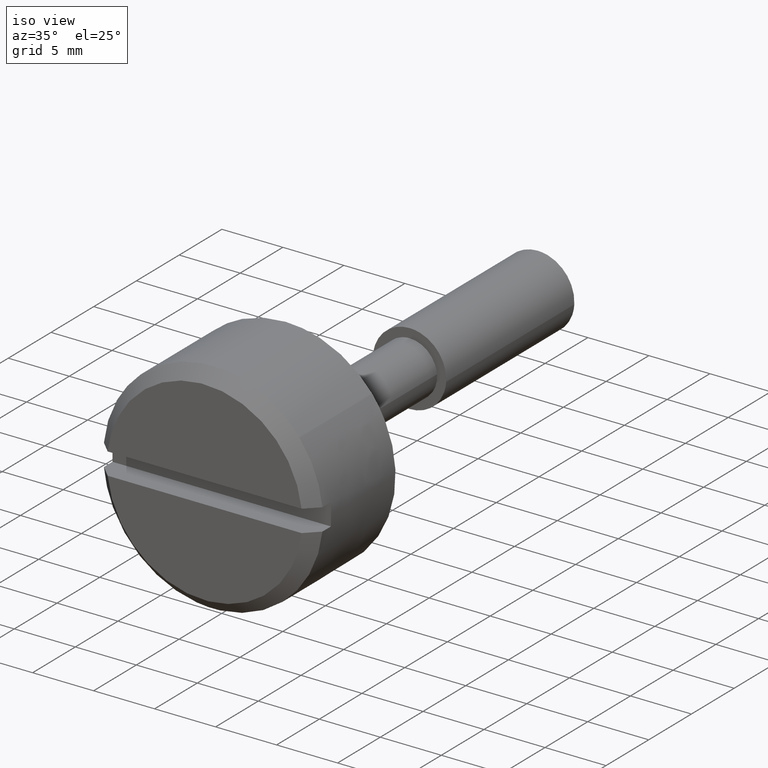
[diagram: clean part render]
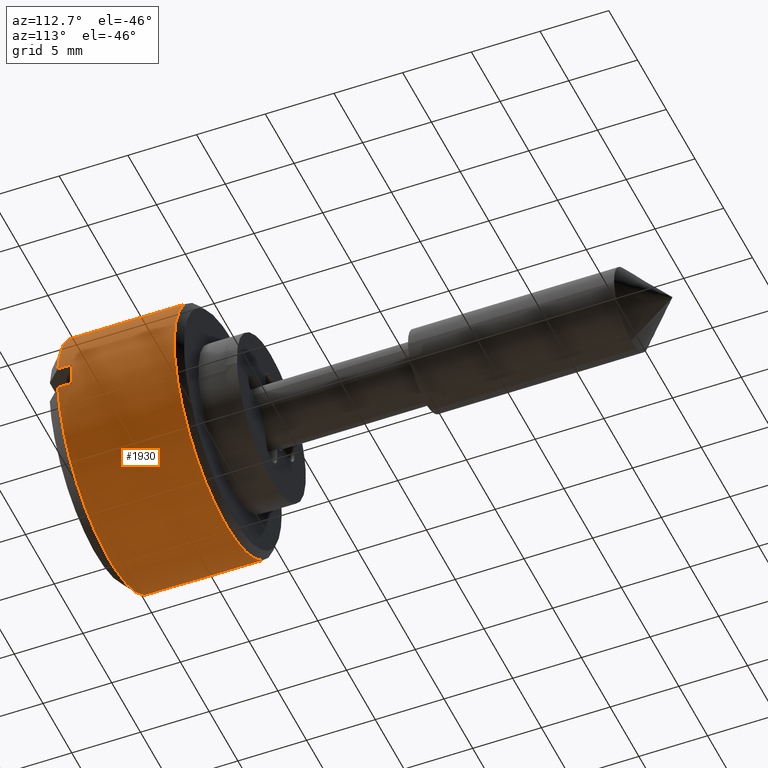
[diagram: tour spotlight — one face highlighted and labeled with its STEP entity id]
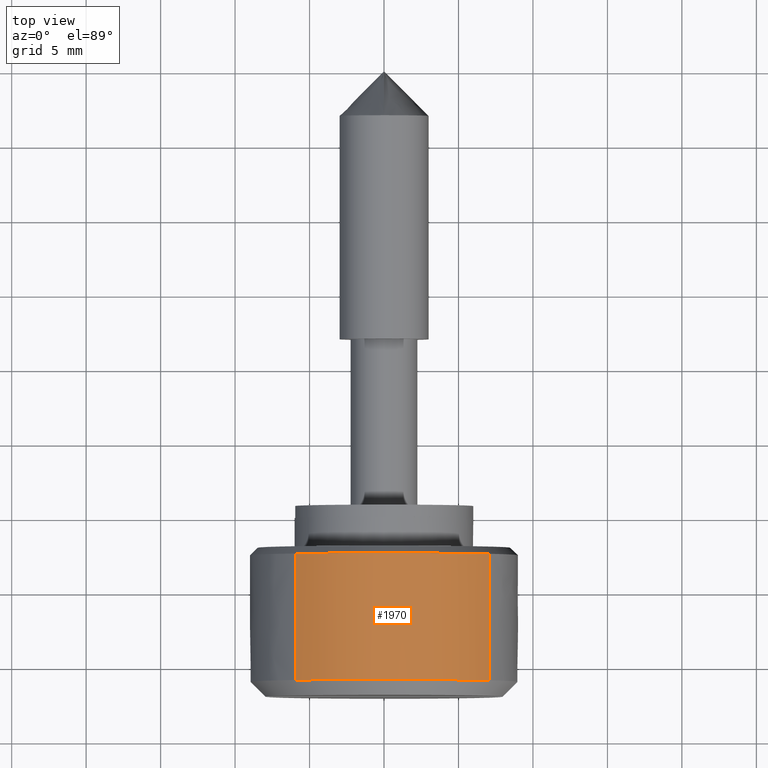
[diagram: tour spotlight — one face highlighted and labeled with its STEP entity id]
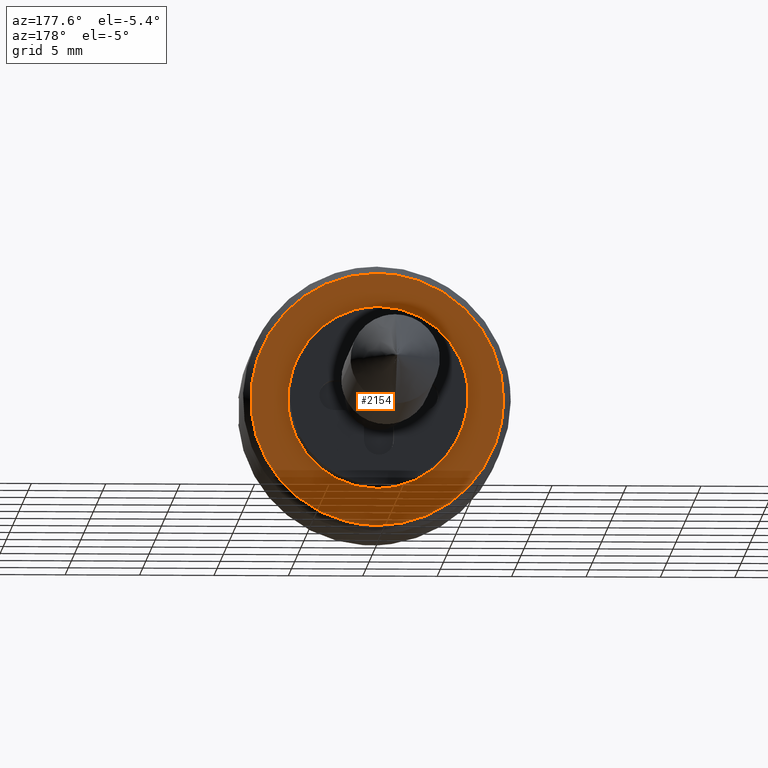
[diagram: tour spotlight — one face highlighted and labeled with its STEP entity id]
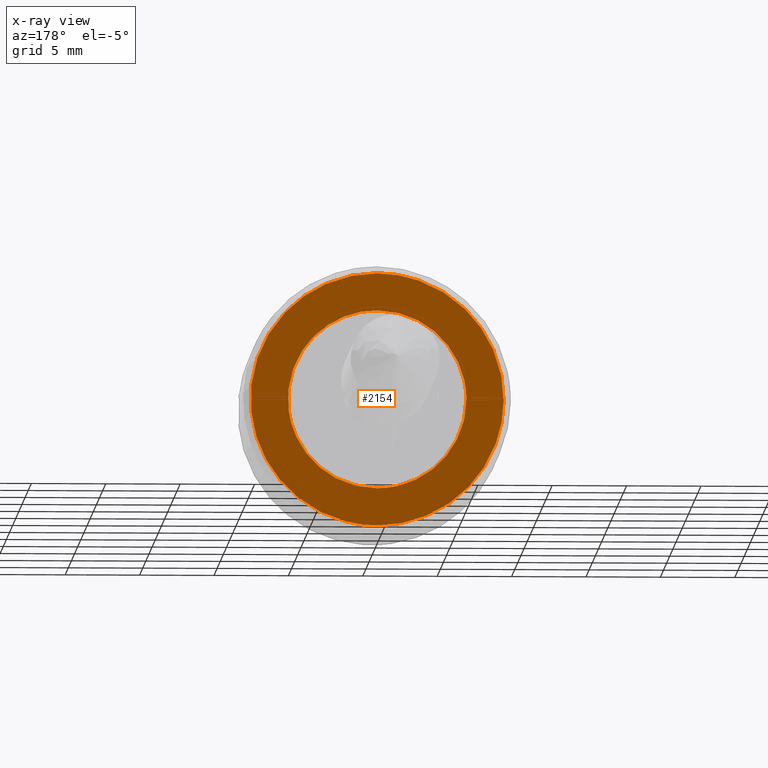
[diagram: x-ray of the same camera — body ghosted, this tour face saturated]
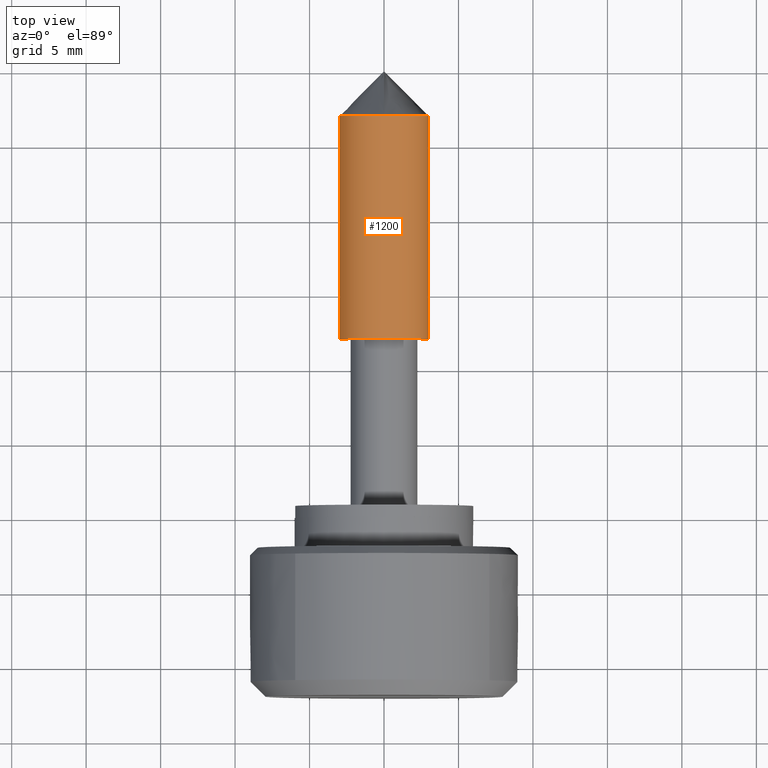
[diagram: tour spotlight — one face highlighted and labeled with its STEP entity id]
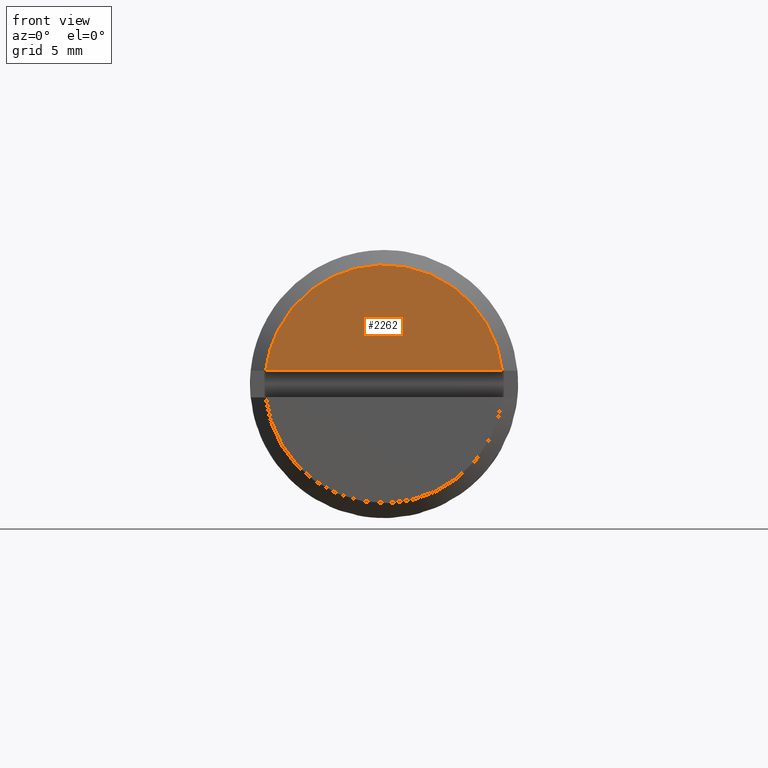
[diagram: tour spotlight — one face highlighted and labeled with its STEP entity id]
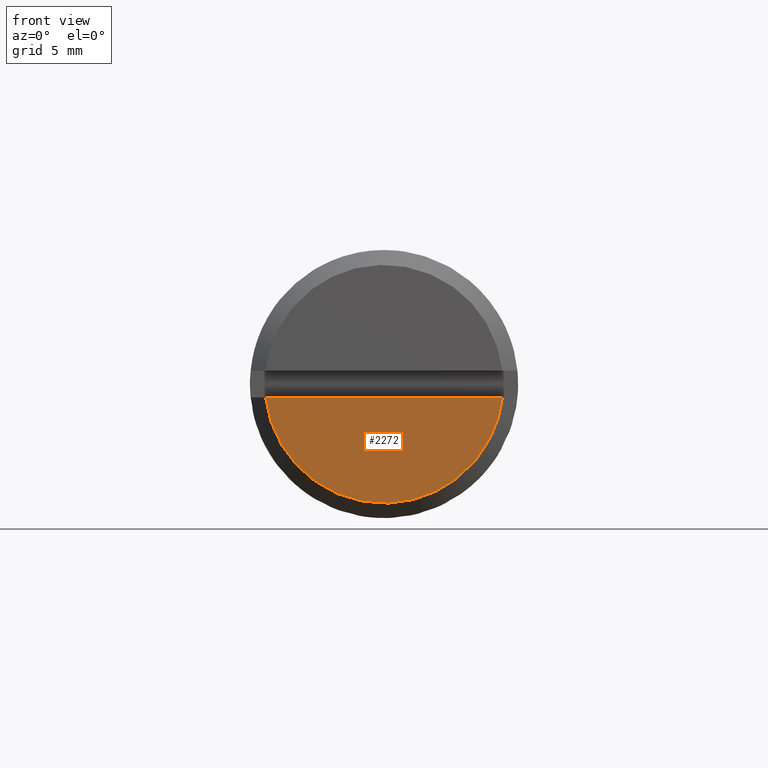
[diagram: tour spotlight — one face highlighted and labeled with its STEP entity id]
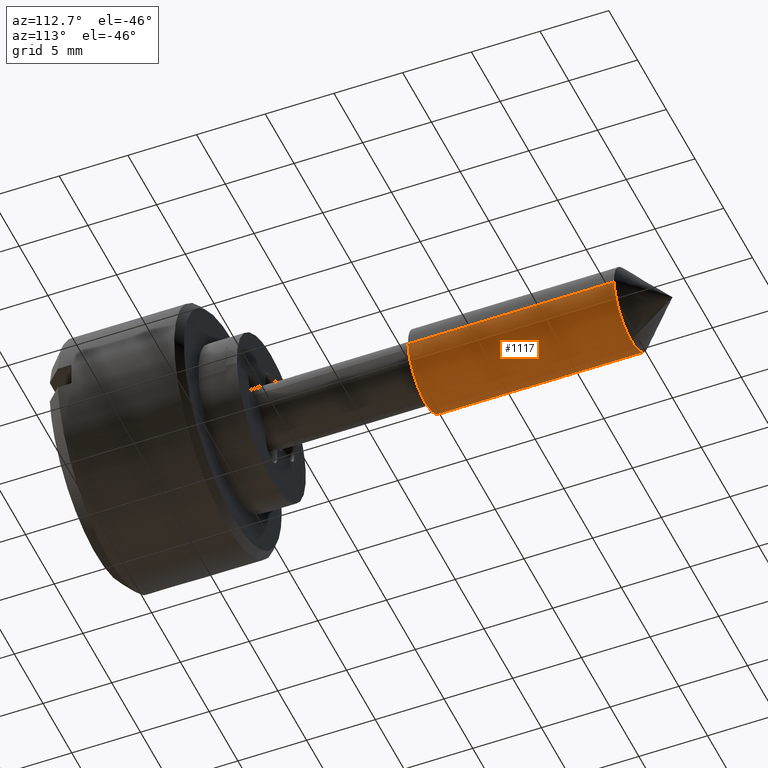
[diagram: tour spotlight — one face highlighted and labeled with its STEP entity id]
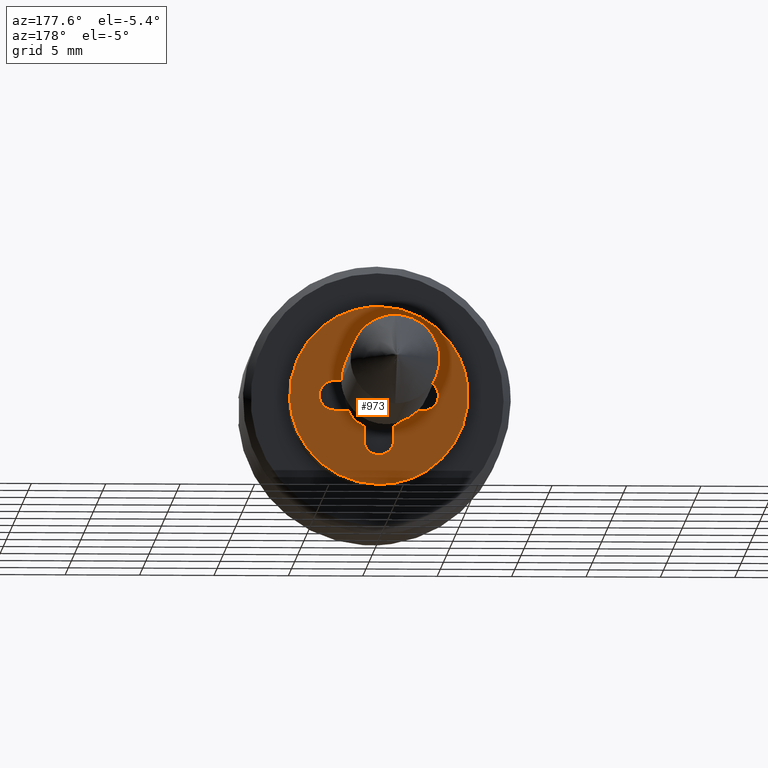
[diagram: tour spotlight — one face highlighted and labeled with its STEP entity id]
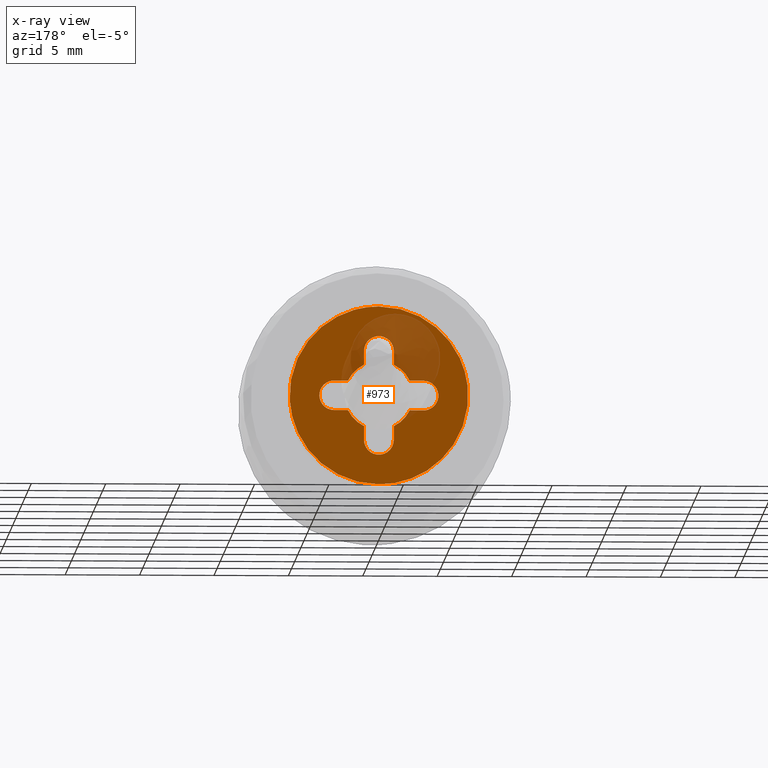
[diagram: x-ray of the same camera — body ghosted, this tour face saturated]
A machine part: a face-by-face anatomy tour. The part has 42 B-rep faces; the first image is the clean iso view, then the 8 largest visible faces are spotlighted one at a time (largest first), each with its STEP entity span.

Face 1 — auxiliary view, entity #1930. In plain terms, the highlighted face is a freeform B-spline surface patch.
Definition (entity closure, byte-faithful):
#1409=CARTESIAN_POINT('',(-2.500000000000823,5.165861152403982,-7.369795014387924));
#1410=VERTEX_POINT('',#1409);
#1411=CARTESIAN_POINT('',(-2.500000000000060,0.0,-9.0));
#1412=VERTEX_POINT('',#1411);
#1413=CARTESIAN_POINT('',(-2.500000000000823,5.165861152403982,-7.369795014387925));
#1414=CARTESIAN_POINT('',(-2.500000000000060,2.840154707553133,-9.000000000000002));
#1415=CARTESIAN_POINT('',(-2.500000000000060,0.0,-9.0));
#1423=(BOUNDED_CURVE()B_SPLINE_CURVE(2,(#1413,#1414,#1415),.UNSPECIFIED.,.F.,.U.)B_SPLINE_CURVE_WITH_KNOTS((3,3),(0.901326273796527,1.0),.UNSPECIFIED.)CURVE()GEOMETRIC_REPRESENTATION_ITEM()RATIONAL_B_SPLINE_CURVE((0.860049271925575,0.884396538879790,1.0))REPRESENTATION_ITEM(''));
#1424=EDGE_CURVE('',#1410,#1412,#1423,.T.);
#1482=CARTESIAN_POINT('',(-2.500000000000179,8.999657307577653,-0.078538819486243));
#1483=VERTEX_POINT('',#1482);
#1489=CARTESIAN_POINT('',(-2.500000000000061,5.963580170915624,6.740601719806758));
#1490=VERTEX_POINT('',#1489);
#1491=CARTESIAN_POINT('',(-2.500000000000061,5.963580170915624,6.740601719806758));
#1492=CARTESIAN_POINT('',(-2.500000000000060,9.0,4.054204805671292));
#1493=CARTESIAN_POINT('',(-2.500000000000060,9.0,0.0));
#1494=CARTESIAN_POINT('',(-2.500000000000060,8.999999999999998,-0.039270157387174));
#1495=CARTESIAN_POINT('',(-2.500000000000179,8.999657307577653,-0.078538819486243));
#1503=(BOUNDED_CURVE()B_SPLINE_CURVE(2,(#1491,#1492,#1493,#1494,#1495),.UNSPECIFIED.,.F.,.U.)B_SPLINE_CURVE_WITH_KNOTS((3,2,3),(0.615779876272906,0.750000000000000,0.751539894335021),.UNSPECIFIED.)CURVE()GEOMETRIC_REPRESENTATION_ITEM()RATIONAL_B_SPLINE_CURVE((0.854350160262094,0.842751343728127,1.0,0.998195901566333,0.996414028100328))REPRESENTATION_ITEM(''));
#1504=EDGE_CURVE('',#1490,#1483,#1503,.T.);
#1521=CARTESIAN_POINT('',(-2.500000000000060,-7.070640577825230,5.568306907777828));
#1522=VERTEX_POINT('',#1521);
#1536=CARTESIAN_POINT('',(-2.500000000000060,0.0,-9.0));
#1537=CARTESIAN_POINT('',(-2.500000000000060,-9.0,-9.0));
#1538=CARTESIAN_POINT('',(-2.500000000000060,-9.0,0.0));
#1539=CARTESIAN_POINT('',(-2.500000000000060,-9.000000000000002,3.118404765965039));
#1540=CARTESIAN_POINT('',(-2.500000000000061,-7.070640577825230,5.568306907777828));
#1548=(BOUNDED_CURVE()B_SPLINE_CURVE(2,(#1536,#1537,#1538,#1539,#1540),.UNSPECIFIED.,.F.,.U.)B_SPLINE_CURVE_WITH_KNOTS((3,2,3),(0.0,0.250000000000000,0.357127503382297),.UNSPECIFIED.)CURVE()GEOMETRIC_REPRESENTATION_ITEM()RATIONAL_B_SPLINE_CURVE((1.0,0.707106781186547,1.0,0.874492322843640,0.856547238559858))REPRESENTATION_ITEM(''));
#1549=EDGE_CURVE('',#1412,#1522,#1548,.T.);
#1568=CARTESIAN_POINT('',(-2.500000000000179,8.999657307577653,-0.078538819486243));
#1569=CARTESIAN_POINT('',(-2.500000000000060,8.959231914342398,-4.710830061143616));
#1570=CARTESIAN_POINT('',(-2.500000000000823,5.165861152403982,-7.369795014387924));
#1578=(BOUNDED_CURVE()B_SPLINE_CURVE(2,(#1568,#1569,#1570),.UNSPECIFIED.,.F.,.U.)B_SPLINE_CURVE_WITH_KNOTS((3,3),(0.751539894335021,0.901326273796527),.UNSPECIFIED.)CURVE()GEOMETRIC_REPRESENTATION_ITEM()RATIONAL_B_SPLINE_CURVE((0.996414028100327,0.823090203821323,0.860049271925575))REPRESENTATION_ITEM(''));
#1579=EDGE_CURVE('',#1483,#1410,#1578,.T.);
#1785=CARTESIAN_POINT('',(-11.212397500000002,-7.070639198512934,5.568308659229686));
#1786=CARTESIAN_POINT('',(-11.212397500000002,-12.329090635285770,-1.108873790183274));
#1787=CARTESIAN_POINT('',(-11.212397500000000,-5.963580433941632,-6.740601487101019));
#1788=CARTESIAN_POINT('',(-11.212397500000002,0.777021053159387,-12.704181921042650));
#1789=CARTESIAN_POINT('',(-11.212397500000000,6.740601487101019,-5.963580433941632));
#1790=CARTESIAN_POINT('',(-11.212397500000002,12.704181921042650,0.777021053159387));
#1791=CARTESIAN_POINT('',(-11.212397500000000,5.963580433941632,6.740601487101019));
#1792=CARTESIAN_POINT('',(-2.282190062500059,-7.070639198512934,5.568308659229686));
#1793=CARTESIAN_POINT('',(-2.282190062500060,-12.329090635285770,-1.108873790183274));
#1794=CARTESIAN_POINT('',(-2.282190062500060,-5.963580433941632,-6.740601487101019));
#1795=CARTESIAN_POINT('',(-2.282190062500060,0.777021053159387,-12.704181921042650));
#1796=CARTESIAN_POINT('',(-2.282190062500060,6.740601487101019,-5.963580433941632));
#1797=CARTESIAN_POINT('',(-2.282190062500061,12.704181921042650,0.777021053159387));
#1798=CARTESIAN_POINT('',(-2.282190062500061,5.963580433941632,6.740601487101019));
#1806=(BOUNDED_SURFACE()B_SPLINE_SURFACE(2,1,((#1785,#1792),(#1786,#1793),(#1787,#1794),(#1788,#1795),(#1789,#1796),(#1790,#1797),(#1791,#1798)),.UNSPECIFIED.,.F.,.F.,.U.)B_SPLINE_SURFACE_WITH_KNOTS((3,2,2,3),(2,2),(0.0,14.315220715614160,29.226908961045570,44.138597206476987),(0.0,8.930207437499943),.UNSPECIFIED.)GEOMETRIC_REPRESENTATION_ITEM()RATIONAL_B_SPLINE_SURFACE(((0.977505800795127,0.977505800795127),(0.718822509939086,0.718822509939086),(1.0,1.0),(0.707106781186548,0.707106781186548),(1.0,1.0),(0.707106781186548,0.707106781186548),(1.0,1.0)))REPRESENTATION_ITEM('')SURFACE());
#1807=CARTESIAN_POINT('',(-10.999900000000009,-7.070639707893692,5.568308012417802));
#1808=VERTEX_POINT('',#1807);
#1809=CARTESIAN_POINT('',(-10.999900000000000,-8.954886933959578,0.900000000000000));
#1810=VERTEX_POINT('',#1809);
#1811=CARTESIAN_POINT('',(-10.999900000000009,-7.070639707893692,5.568308012417803));
#1812=CARTESIAN_POINT('',(-10.999900000000000,-8.692712929360809,3.508598409117082));
#1813=CARTESIAN_POINT('',(-10.999900000000000,-8.954886933959578,0.900000000000001));
#1821=(BOUNDED_CURVE()B_SPLINE_CURVE(2,(#1811,#1812,#1813),.UNSPECIFIED.,.F.,.U.)B_SPLINE_CURVE_WITH_KNOTS((3,3),(0.804778676170615,1.0),.UNSPECIFIED.)CURVE()GEOMETRIC_REPRESENTATION_ITEM()RATIONAL_B_SPLINE_CURVE((0.877012501866071,0.899117369627689,1.0))REPRESENTATION_ITEM(''));
#1822=EDGE_CURVE('',#1808,#1810,#1821,.T.);
#1823=ORIENTED_EDGE('',*,*,#1822,.T.);
#1824=CARTESIAN_POINT('',(-10.0,-8.954886933959628,0.900000000000000));
#1825=VERTEX_POINT('',#1824);
#1826=CARTESIAN_POINT('',(-10.999900000000000,-8.954886933959578,0.900000000000000));
#1827=CARTESIAN_POINT('',(-10.0,-8.954886933959628,0.900000000000000));
#1828=QUASI_UNIFORM_CURVE('',1,(#1826,#1827),.UNSPECIFIED.,.F.,.U.);
#1829=EDGE_CURVE('',#1810,#1825,#1828,.T.);
#1830=ORIENTED_EDGE('',*,*,#1829,.T.);
#1831=CARTESIAN_POINT('',(-10.0,-8.954886933959628,-0.900000000000000));
#1832=VERTEX_POINT('',#1831);
#1833=CARTESIAN_POINT('',(-10.0,-8.954886933959628,0.900000000000000));
#1834=CARTESIAN_POINT('',(-10.0,-9.045340337332908,1.626303E-015));
#1835=CARTESIAN_POINT('',(-10.0,-8.954886933959628,-0.900000000000000));
#1843=(BOUNDED_CURVE()B_SPLINE_CURVE(2,(#1833,#1834,#1835),.UNSPECIFIED.,.F.,.U.)CURVE()GEOMETRIC_REPRESENTATION_ITEM()QUASI_UNIFORM_CURVE()RATIONAL_B_SPLINE_CURVE((1.0,0.994987437106620,1.0))REPRESENTATION_ITEM(''));
#1844=EDGE_CURVE('',#1825,#1832,#1843,.T.);
#1845=ORIENTED_EDGE('',*,*,#1844,.T.);
#1846=CARTESIAN_POINT('',(-10.999900000000000,-8.954886933959578,-0.900000000000000));
#1847=VERTEX_POINT('',#1846);
#1848=CARTESIAN_POINT('',(-10.0,-8.954886933959628,-0.900000000000000));
#1849=CARTESIAN_POINT('',(-10.999900000000000,-8.954886933959578,-0.900000000000000));
#1850=QUASI_UNIFORM_CURVE('',1,(#1848,#1849),.UNSPECIFIED.,.F.,.U.);
#1851=EDGE_CURVE('',#1832,#1847,#1850,.T.);
#1852=ORIENTED_EDGE('',*,*,#1851,.T.);
#1853=CARTESIAN_POINT('',(-10.999900000000000,8.954886933959578,-0.900000000000000));
#1854=VERTEX_POINT('',#1853);
#1855=CARTESIAN_POINT('',(-10.999900000000000,-8.954886933959578,-0.899999999999998));
#1856=CARTESIAN_POINT('',(-10.999900000000000,-8.140806303599618,-9.0));
#1857=CARTESIAN_POINT('',(-10.999900000000000,0.0,-9.0));
#1858=CARTESIAN_POINT('',(-10.999900000000000,8.140806303599614,-9.0));
#1859=CARTESIAN_POINT('',(-10.999900000000000,8.954886933959578,-0.900000000000002));
#1867=(BOUNDED_CURVE()B_SPLINE_CURVE(2,(#1855,#1856,#1857,#1858,#1859),.UNSPECIFIED.,.F.,.U.)B_SPLINE_CURVE_WITH_KNOTS((3,2,3),(0.0,0.500000000000000,1.0),.UNSPECIFIED.)CURVE()GEOMETRIC_REPRESENTATION_ITEM()RATIONAL_B_SPLINE_CURVE((1.0,0.741619848709566,1.0,0.741619848709566,1.0))REPRESENTATION_ITEM(''));
#1868=EDGE_CURVE('',#1847,#1854,#1867,.T.);
#1869=ORIENTED_EDGE('',*,*,#1868,.T.);
#1870=CARTESIAN_POINT('',(-10.0,8.954886933959628,-0.900000000000000));
#1871=VERTEX_POINT('',#1870);
#1872=CARTESIAN_POINT('',(-10.999900000000000,8.954886933959578,-0.900000000000000));
#1873=CARTESIAN_POINT('',(-10.0,8.954886933959628,-0.900000000000000));
#1874=QUASI_UNIFORM_CURVE('',1,(#1872,#1873),.UNSPECIFIED.,.F.,.U.);
#1875=EDGE_CURVE('',#1854,#1871,#1874,.T.);
#1876=ORIENTED_EDGE('',*,*,#1875,.T.);
#1877=CARTESIAN_POINT('',(-10.0,8.954886933959628,0.900000000000000));
#1878=VERTEX_POINT('',#1877);
#1879=CARTESIAN_POINT('',(-10.0,8.954886933959628,-0.900000000000000));
#1880=CARTESIAN_POINT('',(-10.0,9.045340337332908,-2.602085E-015));
#1881=CARTESIAN_POINT('',(-10.0,8.954886933959628,0.900000000000000));
#1889=(BOUNDED_CURVE()B_SPLINE_CURVE(2,(#1879,#1880,#1881),.UNSPECIFIED.,.F.,.U.)CURVE()GEOMETRIC_REPRESENTATION_ITEM()QUASI_UNIFORM_CURVE()RATIONAL_B_SPLINE_CURVE((1.0,0.994987437106620,1.0))REPRESENTATION_ITEM(''));
#1890=EDGE_CURVE('',#1871,#1878,#1889,.T.);
#1891=ORIENTED_EDGE('',*,*,#1890,.T.);
#1892=CARTESIAN_POINT('',(-10.999900000000000,8.954886933959578,0.900000000000000));
#1893=VERTEX_POINT('',#1892);
#1894=CARTESIAN_POINT('',(-10.0,8.954886933959628,0.900000000000000));
#1895=CARTESIAN_POINT('',(-10.999900000000000,8.954886933959578,0.900000000000000));
#1896=QUASI_UNIFORM_CURVE('',1,(#1894,#1895),.UNSPECIFIED.,.F.,.U.);
#1897=EDGE_CURVE('',#1878,#1893,#1896,.T.);
#1898=ORIENTED_EDGE('',*,*,#1897,.T.);
#1899=CARTESIAN_POINT('',(-10.999900000000000,5.963580299776952,6.740601605799899));
#1900=VERTEX_POINT('',#1899);
#1901=CARTESIAN_POINT('',(-10.999900000000000,8.954886933959578,0.900000000000001));
#1902=CARTESIAN_POINT('',(-10.999900000000000,8.602535615492027,4.405851353231656));
#1903=CARTESIAN_POINT('',(-10.999900000000004,5.963580299776952,6.740601605799899));
#1911=(BOUNDED_CURVE()B_SPLINE_CURVE(2,(#1901,#1902,#1903),.UNSPECIFIED.,.F.,.U.)B_SPLINE_CURVE_WITH_KNOTS((3,3),(0.0,0.253570810603550),.UNSPECIFIED.)CURVE()GEOMETRIC_REPRESENTATION_ITEM()RATIONAL_B_SPLINE_CURVE((1.0,0.868964671186834,0.870836280553096))REPRESENTATION_ITEM(''));
#1912=EDGE_CURVE('',#1893,#1900,#1911,.T.);
#1913=ORIENTED_EDGE('',*,*,#1912,.T.);
#1914=CARTESIAN_POINT('',(-10.999900000000000,5.963580299776952,6.740601605799899));
#1915=CARTESIAN_POINT('',(-2.500000000000061,5.963580170915624,6.740601719806758));
#1916=QUASI_UNIFORM_CURVE('',1,(#1914,#1915),.UNSPECIFIED.,.F.,.U.);
#1917=EDGE_CURVE('',#1900,#1490,#1916,.T.);
#1918=ORIENTED_EDGE('',*,*,#1917,.T.);
#1919=ORIENTED_EDGE('',*,*,#1504,.T.);
#1920=ORIENTED_EDGE('',*,*,#1579,.T.);
#1921=ORIENTED_EDGE('',*,*,#1424,.T.);
#1922=ORIENTED_EDGE('',*,*,#1549,.T.);
#1923=CARTESIAN_POINT('',(-10.999900000000009,-7.070639707893692,5.568308012417802));
#1924=CARTESIAN_POINT('',(-2.500000000000060,-7.070640577825230,5.568306907777828));
#1925=QUASI_UNIFORM_CURVE('',1,(#1923,#1924),.UNSPECIFIED.,.F.,.U.);
#1926=EDGE_CURVE('',#1808,#1522,#1925,.T.);
#1927=ORIENTED_EDGE('',*,*,#1926,.F.);
#1928=EDGE_LOOP('',(#1823,#1830,#1845,#1852,#1869,#1876,#1891,#1898,#1913,#1918,#1919,#1920,#1921,#1922,#1927));
#1929=FACE_OUTER_BOUND('',#1928,.T.);
#1930=ADVANCED_FACE('',(#1929),#1806,.T.);

Face 2 — top view, entity #1970. In plain terms, the highlighted face is a freeform B-spline surface patch.
Definition (entity closure, byte-faithful):
#1489=CARTESIAN_POINT('',(-2.500000000000061,5.963580170915624,6.740601719806758));
#1490=VERTEX_POINT('',#1489);
#1506=CARTESIAN_POINT('',(-2.500000000000060,0.0,9.0));
#1507=VERTEX_POINT('',#1506);
#1508=CARTESIAN_POINT('',(-2.500000000000060,0.0,9.0));
#1509=CARTESIAN_POINT('',(-2.500000000000060,3.409794576657790,9.0));
#1510=CARTESIAN_POINT('',(-2.500000000000061,5.963580170915624,6.740601719806758));
#1518=(BOUNDED_CURVE()B_SPLINE_CURVE(2,(#1508,#1509,#1510),.UNSPECIFIED.,.F.,.U.)B_SPLINE_CURVE_WITH_KNOTS((3,3),(0.500000000000000,0.615779876272906),.UNSPECIFIED.)CURVE()GEOMETRIC_REPRESENTATION_ITEM()RATIONAL_B_SPLINE_CURVE((1.0,0.864355437458421,0.854350160262094))REPRESENTATION_ITEM(''));
#1519=EDGE_CURVE('',#1507,#1490,#1518,.T.);
#1521=CARTESIAN_POINT('',(-2.500000000000060,-7.070640577825230,5.568306907777828));
#1522=VERTEX_POINT('',#1521);
#1523=CARTESIAN_POINT('',(-2.500000000000061,-7.070640577825230,5.568306907777828));
#1524=CARTESIAN_POINT('',(-2.500000000000060,-4.368096142074956,8.999999999999998));
#1525=CARTESIAN_POINT('',(-2.500000000000060,0.0,9.0));
#1533=(BOUNDED_CURVE()B_SPLINE_CURVE(2,(#1523,#1524,#1525),.UNSPECIFIED.,.F.,.U.)B_SPLINE_CURVE_WITH_KNOTS((3,3),(0.357127503382297,0.500000000000000),.UNSPECIFIED.)CURVE()GEOMETRIC_REPRESENTATION_ITEM()RATIONAL_B_SPLINE_CURVE((0.856547238559858,0.832614458342907,1.0))REPRESENTATION_ITEM(''));
#1534=EDGE_CURVE('',#1522,#1507,#1533,.T.);
#1807=CARTESIAN_POINT('',(-10.999900000000009,-7.070639707893692,5.568308012417802));
#1808=VERTEX_POINT('',#1807);
#1899=CARTESIAN_POINT('',(-10.999900000000000,5.963580299776952,6.740601605799899));
#1900=VERTEX_POINT('',#1899);
#1914=CARTESIAN_POINT('',(-10.999900000000000,5.963580299776952,6.740601605799899));
#1915=CARTESIAN_POINT('',(-2.500000000000061,5.963580170915624,6.740601719806758));
#1916=QUASI_UNIFORM_CURVE('',1,(#1914,#1915),.UNSPECIFIED.,.F.,.U.);
#1917=EDGE_CURVE('',#1900,#1490,#1916,.T.);
#1923=CARTESIAN_POINT('',(-10.999900000000009,-7.070639707893692,5.568308012417802));
#1924=CARTESIAN_POINT('',(-2.500000000000060,-7.070640577825230,5.568306907777828));
#1925=QUASI_UNIFORM_CURVE('',1,(#1923,#1924),.UNSPECIFIED.,.F.,.U.);
#1926=EDGE_CURVE('',#1808,#1522,#1925,.T.);
#1931=CARTESIAN_POINT('',(-11.212397500000000,5.963580433941632,6.740601487101019));
#1932=CARTESIAN_POINT('',(-11.212397500000002,-0.777021053159387,12.704181921042650));
#1933=CARTESIAN_POINT('',(-11.212397500000000,-6.740601487101019,5.963580433941632));
#1934=CARTESIAN_POINT('',(-11.212397499999998,-6.911276596992985,5.770667315339068));
#1935=CARTESIAN_POINT('',(-11.212397500000002,-7.070639198512934,5.568308659229686));
#1936=CARTESIAN_POINT('',(-2.282190062500061,5.963580433941632,6.740601487101019));
#1937=CARTESIAN_POINT('',(-2.282190062500061,-0.777021053159387,12.704181921042650));
#1938=CARTESIAN_POINT('',(-2.282190062500060,-6.740601487101019,5.963580433941632));
#1939=CARTESIAN_POINT('',(-2.282190062500060,-6.911276596992985,5.770667315339068));
#1940=CARTESIAN_POINT('',(-2.282190062500059,-7.070639198512934,5.568308659229686));
#1948=(BOUNDED_SURFACE()B_SPLINE_SURFACE(2,1,((#1931,#1936),(#1932,#1937),(#1933,#1938),(#1934,#1939),(#1935,#1940)),.UNSPECIFIED.,.F.,.F.,.U.)B_SPLINE_SURFACE_WITH_KNOTS((3,2,3),(2,2),(0.0,14.911688245431410,15.508155775248669),(0.0,8.930207437499943),.UNSPECIFIED.)GEOMETRIC_REPRESENTATION_ITEM()RATIONAL_B_SPLINE_SURFACE(((1.0,1.0),(0.707106781186548,0.707106781186548),(1.0,1.0),(0.988284271247462,0.988284271247462),(0.977505800795127,0.977505800795127)))REPRESENTATION_ITEM('')SURFACE());
#1949=CARTESIAN_POINT('',(-10.999900000000004,5.963580299776952,6.740601605799899));
#1950=CARTESIAN_POINT('',(-10.999900000000002,3.409794773409116,9.0));
#1951=CARTESIAN_POINT('',(-10.999900000000000,0.0,9.0));
#1952=CARTESIAN_POINT('',(-10.999900000000002,-4.368095782060909,9.0));
#1953=CARTESIAN_POINT('',(-10.999900000000009,-7.070639707893692,5.568308012417803));
#1961=(BOUNDED_CURVE()B_SPLINE_CURVE(2,(#1949,#1950,#1951,#1952,#1953),.UNSPECIFIED.,.F.,.U.)B_SPLINE_CURVE_WITH_KNOTS((3,2,3),(0.253570810603550,0.500000000000000,0.804778676170615),.UNSPECIFIED.)CURVE()GEOMETRIC_REPRESENTATION_ITEM()RATIONAL_B_SPLINE_CURVE((0.870836280553096,0.872655177522732,1.0,0.842502479081877,0.877012501866071))REPRESENTATION_ITEM(''));
#1962=EDGE_CURVE('',#1900,#1808,#1961,.T.);
#1963=ORIENTED_EDGE('',*,*,#1962,.T.);
#1964=ORIENTED_EDGE('',*,*,#1926,.T.);
#1965=ORIENTED_EDGE('',*,*,#1534,.T.);
#1966=ORIENTED_EDGE('',*,*,#1519,.T.);
#1967=ORIENTED_EDGE('',*,*,#1917,.F.);
#1968=EDGE_LOOP('',(#1963,#1964,#1965,#1966,#1967));
#1969=FACE_OUTER_BOUND('',#1968,.T.);
#1970=ADVANCED_FACE('',(#1969),#1948,.T.);

Face 3 — auxiliary view, entity #2154. An x-ray twin of the same camera follows (body ghosted, this face saturated) — the face is partly hidden behind the body. In plain terms, the highlighted face is a freeform B-spline surface patch.
Definition (entity closure, byte-faithful):
#1426=CARTESIAN_POINT('',(-2.000000000000451,4.878868866152107,-6.960361958037634));
#1427=VERTEX_POINT('',#1426);
#1433=CARTESIAN_POINT('',(-2.000000000000100,0.0,-8.500000000000000));
#1434=VERTEX_POINT('',#1433);
#1435=CARTESIAN_POINT('',(-2.000000000000100,0.0,-8.500000000000000));
#1436=CARTESIAN_POINT('',(-2.000000000000101,2.682368334901900,-8.500000000000002));
#1437=CARTESIAN_POINT('',(-2.000000000000450,4.878868866152107,-6.960361958037634));
#1445=(BOUNDED_CURVE()B_SPLINE_CURVE(2,(#1435,#1436,#1437),.UNSPECIFIED.,.F.,.U.)B_SPLINE_CURVE_WITH_KNOTS((3,3),(0.0,0.098673726203167),.UNSPECIFIED.)CURVE()GEOMETRIC_REPRESENTATION_ITEM()RATIONAL_B_SPLINE_CURVE((1.0,0.884396538880148,0.860049271925726))REPRESENTATION_ITEM(''));
#1446=EDGE_CURVE('',#1434,#1427,#1445,.T.);
#1448=CARTESIAN_POINT('',(-2.000000000000100,0.0,8.500000000000000));
#1449=VERTEX_POINT('',#1448);
#1450=CARTESIAN_POINT('',(-2.000000000000100,0.0,8.500000000000000));
#1451=CARTESIAN_POINT('',(-2.000000000000100,-8.500000000000002,8.500000000000002));
#1452=CARTESIAN_POINT('',(-2.000000000000100,-8.500000000000000,0.0));
#1453=CARTESIAN_POINT('',(-2.000000000000100,-8.500000000000002,-8.500000000000002));
#1454=CARTESIAN_POINT('',(-2.000000000000100,0.0,-8.500000000000000));
#1462=(BOUNDED_CURVE()B_SPLINE_CURVE(2,(#1450,#1451,#1452,#1453,#1454),.UNSPECIFIED.,.F.,.U.)B_SPLINE_CURVE_WITH_KNOTS((3,2,3),(0.500000000000000,0.750000000000000,1.0),.UNSPECIFIED.)CURVE()GEOMETRIC_REPRESENTATION_ITEM()RATIONAL_B_SPLINE_CURVE((1.0,0.707106781186548,1.0,0.707106781186548,1.0))REPRESENTATION_ITEM(''));
#1463=EDGE_CURVE('',#1449,#1434,#1462,.T.);
#1465=CARTESIAN_POINT('',(-2.000000000001879,8.499676346047114,-0.074175551749272));
#1466=VERTEX_POINT('',#1465);
#1467=CARTESIAN_POINT('',(-2.000000000001879,8.499676346047114,-0.074175551749272));
#1468=CARTESIAN_POINT('',(-2.000000000000100,8.500000000000000,-0.037088481989042));
#1469=CARTESIAN_POINT('',(-2.000000000000100,8.500000000000000,0.0));
#1470=CARTESIAN_POINT('',(-2.000000000000100,8.500000000000002,8.500000000000002));
#1471=CARTESIAN_POINT('',(-2.000000000000100,0.0,8.500000000000000));
#1479=(BOUNDED_CURVE()B_SPLINE_CURVE(2,(#1467,#1468,#1469,#1470,#1471),.UNSPECIFIED.,.F.,.U.)B_SPLINE_CURVE_WITH_KNOTS((3,2,3),(0.248460105664471,0.250000000000000,0.500000000000000),.UNSPECIFIED.)CURVE()GEOMETRIC_REPRESENTATION_ITEM()RATIONAL_B_SPLINE_CURVE((0.996414028099151,0.998195901565737,1.0,0.707106781186548,1.0))REPRESENTATION_ITEM(''));
#1480=EDGE_CURVE('',#1466,#1449,#1479,.T.);
#1582=CARTESIAN_POINT('',(-2.000000000000450,4.878868866152107,-6.960361958037634));
#1583=CARTESIAN_POINT('',(-2.000000000000101,8.461496807977261,-4.449117279988691));
#1584=CARTESIAN_POINT('',(-2.000000000001879,8.499676346047114,-0.074175551749272));
#1592=(BOUNDED_CURVE()B_SPLINE_CURVE(2,(#1582,#1583,#1584),.UNSPECIFIED.,.F.,.U.)B_SPLINE_CURVE_WITH_KNOTS((3,3),(0.098673726203167,0.248460105664471),.UNSPECIFIED.)CURVE()GEOMETRIC_REPRESENTATION_ITEM()RATIONAL_B_SPLINE_CURVE((0.860049271925726,0.823090203821094,0.996414028099151))REPRESENTATION_ITEM(''));
#1593=EDGE_CURVE('',#1427,#1466,#1592,.T.);
#1617=CARTESIAN_POINT('',(-2.000000000000115,0.0,-6.0));
#1618=VERTEX_POINT('',#1617);
#1619=CARTESIAN_POINT('',(-1.999999999999961,-5.953598067485189,-0.744761740959263));
#1620=VERTEX_POINT('',#1619);
#1621=CARTESIAN_POINT('',(-2.000000000000115,0.0,-6.0));
#1622=CARTESIAN_POINT('',(-2.000000000000115,-5.296197223394925,-6.000000000000001));
#1623=CARTESIAN_POINT('',(-1.999999999999961,-5.953598067485189,-0.744761740959263));
#1631=(BOUNDED_CURVE()B_SPLINE_CURVE(2,(#1621,#1622,#1623),.UNSPECIFIED.,.F.,.U.)B_SPLINE_CURVE_WITH_KNOTS((3,3),(0.0,0.228526248680937),.UNSPECIFIED.)CURVE()GEOMETRIC_REPRESENTATION_ITEM()RATIONAL_B_SPLINE_CURVE((1.0,0.732264845761908,0.954005775028161))REPRESENTATION_ITEM(''));
#1632=EDGE_CURVE('',#1618,#1620,#1631,.T.);
#1634=CARTESIAN_POINT('',(-2.000000000000168,5.999771563433871,0.052356342519694));
#1635=VERTEX_POINT('',#1634);
#1636=CARTESIAN_POINT('',(-2.000000000000168,5.999771563433871,0.052356342519694));
#1637=CARTESIAN_POINT('',(-2.000000000000115,6.0,0.026178669606964));
#1638=CARTESIAN_POINT('',(-2.000000000000115,6.0,0.0));
#1639=CARTESIAN_POINT('',(-2.000000000000114,6.0,-6.0));
#1640=CARTESIAN_POINT('',(-2.000000000000115,0.0,-6.0));
#1648=(BOUNDED_CURVE()B_SPLINE_CURVE(2,(#1636,#1637,#1638,#1639,#1640),.UNSPECIFIED.,.F.,.U.)B_SPLINE_CURVE_WITH_KNOTS((3,2,3),(0.748460189937006,0.750000000000000,1.0),.UNSPECIFIED.)CURVE()GEOMETRIC_REPRESENTATION_ITEM()RATIONAL_B_SPLINE_CURVE((0.996414223129476,0.998196000297154,1.0,0.707106781186548,1.0))REPRESENTATION_ITEM(''));
#1649=EDGE_CURVE('',#1635,#1618,#1648,.T.);
#1720=CARTESIAN_POINT('',(-2.000000000000115,0.0,6.0));
#1721=VERTEX_POINT('',#1720);
#1722=CARTESIAN_POINT('',(-1.999999999999961,-5.953598067485189,-0.744761740959263));
#1723=CARTESIAN_POINT('',(-2.000000000000116,-6.000000000000001,-0.373826392733726));
#1724=CARTESIAN_POINT('',(-2.000000000000115,-6.0,0.0));
#1725=CARTESIAN_POINT('',(-2.000000000000114,-6.0,6.0));
#1726=CARTESIAN_POINT('',(-2.000000000000115,0.0,6.0));
#1734=(BOUNDED_CURVE()B_SPLINE_CURVE(2,(#1722,#1723,#1724,#1725,#1726),.UNSPECIFIED.,.F.,.U.)B_SPLINE_CURVE_WITH_KNOTS((3,2,3),(0.228526248680937,0.250000000000000,0.500000000000000),.UNSPECIFIED.)CURVE()GEOMETRIC_REPRESENTATION_ITEM()RATIONAL_B_SPLINE_CURVE((0.954005775028161,0.974841935424640,1.0,0.707106781186548,1.0))REPRESENTATION_ITEM(''));
#1735=EDGE_CURVE('',#1620,#1721,#1734,.T.);
#1769=CARTESIAN_POINT('',(-2.000000000000115,0.0,6.0));
#1770=CARTESIAN_POINT('',(-2.000000000000114,5.947870109316879,6.0));
#1771=CARTESIAN_POINT('',(-2.000000000000168,5.999771563433871,0.052356342519694));
#1779=(BOUNDED_CURVE()B_SPLINE_CURVE(2,(#1769,#1770,#1771),.UNSPECIFIED.,.F.,.U.)B_SPLINE_CURVE_WITH_KNOTS((3,3),(0.500000000000000,0.748460189937006),.UNSPECIFIED.)CURVE()GEOMETRIC_REPRESENTATION_ITEM()RATIONAL_B_SPLINE_CURVE((1.0,0.708910780889394,0.996414223129476))REPRESENTATION_ITEM(''));
#1780=EDGE_CURVE('',#1721,#1635,#1779,.T.);
#2137=CARTESIAN_POINT('',(-2.000000000000100,-9.349133811290388,-9.349149967050701));
#2138=CARTESIAN_POINT('',(-2.000000000000100,9.348810828621517,-9.349149967050701));
#2139=CARTESIAN_POINT('',(-2.000000000000100,-9.349133811290388,9.349150423026236));
#2140=CARTESIAN_POINT('',(-2.000000000000100,9.348810828621515,9.349150423026236));
#2141=B_SPLINE_SURFACE_WITH_KNOTS('',1,1,((#2137,#2139),(#2138,#2140)),.UNSPECIFIED.,.F.,.F.,.U.,(2,2),(2,2),(0.0,18.697944639911899),(0.0,18.698300390076941),.UNSPECIFIED.);
#2142=ORIENTED_EDGE('',*,*,#1446,.T.);
#2143=ORIENTED_EDGE('',*,*,#1593,.T.);
#2144=ORIENTED_EDGE('',*,*,#1480,.T.);
#2145=ORIENTED_EDGE('',*,*,#1463,.T.);
#2146=EDGE_LOOP('',(#2142,#2143,#2144,#2145));
#2147=FACE_OUTER_BOUND('',#2146,.T.);
#2148=ORIENTED_EDGE('',*,*,#1780,.T.);
#2149=ORIENTED_EDGE('',*,*,#1649,.T.);
#2150=ORIENTED_EDGE('',*,*,#1632,.T.);
#2151=ORIENTED_EDGE('',*,*,#1735,.T.);
#2152=EDGE_LOOP('',(#2148,#2149,#2150,#2151));
#2153=FACE_BOUND('',#2152,.T.);
#2154=ADVANCED_FACE('',(#2147,#2153),#2141,.T.);

Face 4 — top view, entity #1200. In plain terms, the highlighted face is a freeform B-spline surface patch.
Definition (entity closure, byte-faithful):
#1037=CARTESIAN_POINT('',(27.0,2.979028579089050,0.354102703986673));
#1038=VERTEX_POINT('',#1037);
#1056=CARTESIAN_POINT('',(27.0,-2.994404395262166,-0.183145618660719));
#1057=VERTEX_POINT('',#1056);
#1071=CARTESIAN_POINT('',(12.0,-2.994404395262166,-0.183145618660718));
#1072=VERTEX_POINT('',#1071);
#1073=CARTESIAN_POINT('',(27.0,-2.994404395262166,-0.183145618660719));
#1074=CARTESIAN_POINT('',(12.0,-2.994404395262166,-0.183145618660718));
#1075=QUASI_UNIFORM_CURVE('',1,(#1073,#1074),.UNSPECIFIED.,.F.,.U.);
#1076=EDGE_CURVE('',#1057,#1072,#1075,.T.);
#1093=CARTESIAN_POINT('',(12.0,2.979028579089050,0.354102703986673));
#1094=VERTEX_POINT('',#1093);
#1110=CARTESIAN_POINT('',(27.0,2.979028579089050,0.354102703986673));
#1111=CARTESIAN_POINT('',(12.0,2.979028579089050,0.354102703986673));
#1112=QUASI_UNIFORM_CURVE('',1,(#1110,#1111),.UNSPECIFIED.,.F.,.U.);
#1113=EDGE_CURVE('',#1038,#1094,#1112,.T.);
#1118=CARTESIAN_POINT('',(27.375000000000011,-2.994404395265600,-0.183145618604571));
#1119=CARTESIAN_POINT('',(27.375000000000014,-3.177550013870171,2.811258776661029));
#1120=CARTESIAN_POINT('',(27.375000000000011,-0.183145618604571,2.994404395265600));
#1121=CARTESIAN_POINT('',(27.375000000000011,2.644630472518504,3.167358590197582));
#1122=CARTESIAN_POINT('',(27.375000000000018,2.979028579091000,0.354102703970275));
#1123=CARTESIAN_POINT('',(11.615625000000000,-2.994404395265600,-0.183145618604571));
#1124=CARTESIAN_POINT('',(11.615625000000000,-3.177550013870171,2.811258776661029));
#1125=CARTESIAN_POINT('',(11.615625000000000,-0.183145618604571,2.994404395265600));
#1126=CARTESIAN_POINT('',(11.615625000000000,2.644630472518504,3.167358590197582));
#1127=CARTESIAN_POINT('',(11.615625000000005,2.979028579091000,0.354102703970275));
#1135=(BOUNDED_SURFACE()B_SPLINE_SURFACE(2,1,((#1118,#1123),(#1119,#1124),(#1120,#1125),(#1121,#1126),(#1122,#1127)),.UNSPECIFIED.,.F.,.F.,.U.)B_SPLINE_SURFACE_WITH_KNOTS((3,2,3),(2,2),(0.0,4.970562748477139,9.742302987015194),(0.0,15.759375000000020),.UNSPECIFIED.)GEOMETRIC_REPRESENTATION_ITEM()RATIONAL_B_SPLINE_SURFACE(((1.0,1.0),(0.707106781186548,0.707106781186548),(1.0,1.0),(0.718822509939086,0.718822509939086),(0.977505800795127,0.977505800795127)))REPRESENTATION_ITEM('')SURFACE());
#1136=CARTESIAN_POINT('',(27.000000000000011,0.0,3.000000000000014));
#1137=VERTEX_POINT('',#1136);
#1138=CARTESIAN_POINT('',(27.0,0.0,3.0));
#1139=CARTESIAN_POINT('',(27.000000000000007,2.664523577824563,3.000000000000001));
#1140=CARTESIAN_POINT('',(27.0,2.979028579089050,0.354102703986673));
#1148=(BOUNDED_CURVE()B_SPLINE_CURVE(2,(#1138,#1139,#1140),.UNSPECIFIED.,.F.,.U.)B_SPLINE_CURVE_WITH_KNOTS((3,3),(0.0,0.459124947027567),.UNSPECIFIED.)CURVE()GEOMETRIC_REPRESENTATION_ITEM()RATIONAL_B_SPLINE_CURVE((1.0,0.731050832855080,0.956026754184239))REPRESENTATION_ITEM(''));
#1149=EDGE_CURVE('',#1137,#1038,#1148,.T.);
#1150=ORIENTED_EDGE('',*,*,#1149,.T.);
#1151=ORIENTED_EDGE('',*,*,#1113,.T.);
#1152=CARTESIAN_POINT('',(12.0,0.0,3.0));
#1153=VERTEX_POINT('',#1152);
#1154=CARTESIAN_POINT('',(12.0,0.0,3.0));
#1155=CARTESIAN_POINT('',(12.000000000000004,2.664523577824563,3.000000000000001));
#1156=CARTESIAN_POINT('',(12.000000000000002,2.979028579089050,0.354102703986673));
#1164=(BOUNDED_CURVE()B_SPLINE_CURVE(2,(#1154,#1155,#1156),.UNSPECIFIED.,.F.,.U.)B_SPLINE_CURVE_WITH_KNOTS((3,3),(0.0,0.229562473513784),.UNSPECIFIED.)CURVE()GEOMETRIC_REPRESENTATION_ITEM()RATIONAL_B_SPLINE_CURVE((1.0,0.731050832855080,0.956026754184239))REPRESENTATION_ITEM(''));
#1165=EDGE_CURVE('',#1153,#1094,#1164,.T.);
#1166=ORIENTED_EDGE('',*,*,#1165,.F.);
#1167=CARTESIAN_POINT('',(11.999999999999996,-2.994404395262166,-0.183145618660718));
#1168=CARTESIAN_POINT('',(12.0,-3.000000000000000,-0.091658289952072));
#1169=CARTESIAN_POINT('',(12.0,-3.0,0.0));
#1170=CARTESIAN_POINT('',(12.0,-3.0,3.0));
#1171=CARTESIAN_POINT('',(12.0,0.0,3.0));
#1179=(BOUNDED_CURVE()B_SPLINE_CURVE(2,(#1167,#1168,#1169,#1170,#1171),.UNSPECIFIED.,.F.,.U.)B_SPLINE_CURVE_WITH_KNOTS((3,2,3),(0.739332962235497,0.750000000000000,1.0),.UNSPECIFIED.)CURVE()GEOMETRIC_REPRESENTATION_ITEM()RATIONAL_B_SPLINE_CURVE((0.976072041659334,0.987502787895801,1.0,0.707106781186548,1.0))REPRESENTATION_ITEM(''));
#1180=EDGE_CURVE('',#1072,#1153,#1179,.T.);
#1181=ORIENTED_EDGE('',*,*,#1180,.F.);
#1182=ORIENTED_EDGE('',*,*,#1076,.F.);
#1183=CARTESIAN_POINT('',(27.0,-2.994404395262166,-0.183145618660719));
#1184=CARTESIAN_POINT('',(27.0,-3.0,-0.091658289952073));
#1185=CARTESIAN_POINT('',(27.0,-3.0,0.0));
#1186=CARTESIAN_POINT('',(27.000000000000011,-3.0,3.0));
#1187=CARTESIAN_POINT('',(27.0,0.0,3.0));
#1195=(BOUNDED_CURVE()B_SPLINE_CURVE(2,(#1183,#1184,#1185,#1186,#1187),.UNSPECIFIED.,.F.,.U.)B_SPLINE_CURVE_WITH_KNOTS((3,2,3),(0.478665924470995,0.500000000000000,1.0),.UNSPECIFIED.)CURVE()GEOMETRIC_REPRESENTATION_ITEM()RATIONAL_B_SPLINE_CURVE((0.976072041659333,0.987502787895801,1.0,0.707106781186548,1.0))REPRESENTATION_ITEM(''));
#1196=EDGE_CURVE('',#1057,#1137,#1195,.T.);
#1197=ORIENTED_EDGE('',*,*,#1196,.T.);
#1198=EDGE_LOOP('',(#1150,#1151,#1166,#1181,#1182,#1197));
#1199=FACE_OUTER_BOUND('',#1198,.T.);
#1200=ADVANCED_FACE('',(#1199),#1135,.T.);

Face 5 — front view, entity #2262. In plain terms, the highlighted face is a freeform B-spline surface patch.
Definition (entity closure, byte-faithful):
#2017=CARTESIAN_POINT('',(-11.999900000000000,-7.949213797602840,0.900000000000000));
#2018=VERTEX_POINT('',#2017);
#2026=CARTESIAN_POINT('',(-11.999900000000000,7.949213797602840,0.900000000000000));
#2027=VERTEX_POINT('',#2026);
#2028=CARTESIAN_POINT('',(-11.999900000000000,7.949213797602840,0.900000000000000));
#2029=CARTESIAN_POINT('',(-11.999900000000000,-7.949213797602840,0.900000000000000));
#2030=QUASI_UNIFORM_CURVE('',1,(#2028,#2029),.UNSPECIFIED.,.F.,.U.);
#2031=EDGE_CURVE('',#2027,#2018,#2030,.T.);
#2195=CARTESIAN_POINT('',(-11.999900000000000,-7.949213797602880,0.900000000000001));
#2196=CARTESIAN_POINT('',(-11.999900000000000,-7.145360716946407,8.0));
#2197=CARTESIAN_POINT('',(-11.999900000000000,0.0,8.0));
#2198=CARTESIAN_POINT('',(-11.999900000000000,7.145360716946407,8.0));
#2199=CARTESIAN_POINT('',(-11.999900000000000,7.949213797602880,0.900000000000003));
#2207=(BOUNDED_CURVE()B_SPLINE_CURVE(2,(#2195,#2196,#2197,#2198,#2199),.UNSPECIFIED.,.F.,.U.)B_SPLINE_CURVE_WITH_KNOTS((3,2,3),(0.0,0.500000000000000,1.0),.UNSPECIFIED.)CURVE()GEOMETRIC_REPRESENTATION_ITEM()RATIONAL_B_SPLINE_CURVE((1.0,0.745821694508815,1.0,0.745821694508815,1.0))REPRESENTATION_ITEM(''));
#2208=EDGE_CURVE('',#2018,#2027,#2207,.T.);
#2253=CARTESIAN_POINT('',(-11.999900000000000,-8.743340523655251,0.545354947111458));
#2254=CARTESIAN_POINT('',(-11.999900000000000,8.743340665798272,0.545354947111458));
#2255=CARTESIAN_POINT('',(-11.999900000000000,-8.743340523655251,8.354645179846415));
#2256=CARTESIAN_POINT('',(-11.999900000000000,8.743340665798272,8.354645179846415));
#2257=B_SPLINE_SURFACE_WITH_KNOTS('',1,1,((#2253,#2255),(#2254,#2256)),.UNSPECIFIED.,.F.,.F.,.U.,(2,2),(2,2),(0.0,17.486681189453520),(0.0,7.809290232734956),.UNSPECIFIED.);
#2258=ORIENTED_EDGE('',*,*,#2031,.T.);
#2259=ORIENTED_EDGE('',*,*,#2208,.T.);
#2260=EDGE_LOOP('',(#2258,#2259));
#2261=FACE_OUTER_BOUND('',#2260,.T.);
#2262=ADVANCED_FACE('',(#2261),#2257,.F.);

Face 6 — front view, entity #2272. In plain terms, the highlighted face is a freeform B-spline surface patch.
Definition (entity closure, byte-faithful):
#2055=CARTESIAN_POINT('',(-11.999900000000000,7.949213797602840,-0.900000000000000));
#2056=VERTEX_POINT('',#2055);
#2064=CARTESIAN_POINT('',(-11.999900000000000,-7.949213797602840,-0.900000000000000));
#2065=VERTEX_POINT('',#2064);
#2066=CARTESIAN_POINT('',(-11.999900000000000,7.949213797602840,-0.900000000000000));
#2067=CARTESIAN_POINT('',(-11.999900000000000,-7.949213797602840,-0.900000000000000));
#2068=QUASI_UNIFORM_CURVE('',1,(#2066,#2067),.UNSPECIFIED.,.F.,.U.);
#2069=EDGE_CURVE('',#2056,#2065,#2068,.T.);
#2234=CARTESIAN_POINT('',(-11.999900000000000,7.949213797602880,-0.900000000000000));
#2235=CARTESIAN_POINT('',(-11.999900000000000,7.145360716946408,-8.0));
#2236=CARTESIAN_POINT('',(-11.999900000000000,0.0,-8.0));
#2237=CARTESIAN_POINT('',(-11.999900000000000,-7.145360716946406,-8.0));
#2238=CARTESIAN_POINT('',(-11.999900000000000,-7.949213797602880,-0.900000000000004));
#2246=(BOUNDED_CURVE()B_SPLINE_CURVE(2,(#2234,#2235,#2236,#2237,#2238),.UNSPECIFIED.,.F.,.U.)B_SPLINE_CURVE_WITH_KNOTS((3,2,3),(0.0,0.500000000000000,1.0),.UNSPECIFIED.)CURVE()GEOMETRIC_REPRESENTATION_ITEM()RATIONAL_B_SPLINE_CURVE((1.0,0.745821694508815,1.0,0.745821694508815,1.0))REPRESENTATION_ITEM(''));
#2247=EDGE_CURVE('',#2056,#2065,#2246,.T.);
#2263=CARTESIAN_POINT('',(-11.999900000000000,-8.743340523655251,-8.354644986238800));
#2264=CARTESIAN_POINT('',(-11.999900000000000,8.743340665798272,-8.354644986238800));
#2265=CARTESIAN_POINT('',(-11.999900000000000,-8.743340523655251,-0.545354823324339));
#2266=CARTESIAN_POINT('',(-11.999900000000000,8.743340665798272,-0.545354823324339));
#2267=B_SPLINE_SURFACE_WITH_KNOTS('',1,1,((#2263,#2265),(#2264,#2266)),.UNSPECIFIED.,.F.,.F.,.U.,(2,2),(2,2),(0.0,17.486681189453520),(0.0,7.809290162914460),.UNSPECIFIED.);
#2268=ORIENTED_EDGE('',*,*,#2069,.F.);
#2269=ORIENTED_EDGE('',*,*,#2247,.T.);
#2270=EDGE_LOOP('',(#2268,#2269));
#2271=FACE_OUTER_BOUND('',#2270,.T.);
#2272=ADVANCED_FACE('',(#2271),#2267,.F.);

Face 7 — auxiliary view, entity #1117. In plain terms, the highlighted face is a freeform B-spline surface patch.
Definition (entity closure, byte-faithful):
#1015=CARTESIAN_POINT('',(27.375000000000018,2.979028579091000,0.354102703970275));
#1016=CARTESIAN_POINT('',(27.375000000000011,2.989162846345817,0.268844185913933));
#1017=CARTESIAN_POINT('',(27.375000000000011,2.994404395265600,0.183145618604571));
#1018=CARTESIAN_POINT('',(27.375000000000014,3.177550013870171,-2.811258776661029));
#1019=CARTESIAN_POINT('',(27.375000000000011,0.183145618604571,-2.994404395265600));
#1020=CARTESIAN_POINT('',(27.375000000000014,-2.811258776661029,-3.177550013870171));
#1021=CARTESIAN_POINT('',(27.375000000000011,-2.994404395265600,-0.183145618604571));
#1022=CARTESIAN_POINT('',(11.615625000000005,2.979028579091000,0.354102703970275));
#1023=CARTESIAN_POINT('',(11.615625000000001,2.989162846345817,0.268844185913933));
#1024=CARTESIAN_POINT('',(11.615625000000000,2.994404395265600,0.183145618604571));
#1025=CARTESIAN_POINT('',(11.615625000000000,3.177550013870171,-2.811258776661029));
#1026=CARTESIAN_POINT('',(11.615625000000000,0.183145618604571,-2.994404395265600));
#1027=CARTESIAN_POINT('',(11.615625000000000,-2.811258776661029,-3.177550013870171));
#1028=CARTESIAN_POINT('',(11.615625000000000,-2.994404395265600,-0.183145618604571));
#1036=(BOUNDED_SURFACE()B_SPLINE_SURFACE(2,1,((#1015,#1022),(#1016,#1023),(#1017,#1024),(#1018,#1025),(#1019,#1026),(#1020,#1027),(#1021,#1028)),.UNSPECIFIED.,.F.,.F.,.U.)B_SPLINE_SURFACE_WITH_KNOTS((3,2,2,3),(2,2),(0.0,0.198822509939086,5.169385258416225,10.139948006893370),(0.0,15.759375000000020),.UNSPECIFIED.)GEOMETRIC_REPRESENTATION_ITEM()RATIONAL_B_SPLINE_SURFACE(((0.977505800795127,0.977505800795127),(0.988284271247462,0.988284271247462),(1.0,1.0),(0.707106781186548,0.707106781186548),(1.0,1.0),(0.707106781186548,0.707106781186548),(1.0,1.0)))REPRESENTATION_ITEM('')SURFACE());
#1037=CARTESIAN_POINT('',(27.0,2.979028579089050,0.354102703986673));
#1038=VERTEX_POINT('',#1037);
#1039=CARTESIAN_POINT('',(27.000000000000011,0.0,-3.000000000000015));
#1040=VERTEX_POINT('',#1039);
#1041=CARTESIAN_POINT('',(27.000000000000004,2.979028579089050,0.354102703986673));
#1042=CARTESIAN_POINT('',(27.000000000000004,3.0,0.177672358972301));
#1043=CARTESIAN_POINT('',(27.0,3.0,0.0));
#1044=CARTESIAN_POINT('',(27.000000000000011,3.0,-3.0));
#1045=CARTESIAN_POINT('',(27.0,0.0,-3.0));
#1053=(BOUNDED_CURVE()B_SPLINE_CURVE(2,(#1041,#1042,#1043,#1044,#1045),.UNSPECIFIED.,.F.,.U.)B_SPLINE_CURVE_WITH_KNOTS((3,2,3),(0.459124947027568,0.500000000000000,1.0),.UNSPECIFIED.)CURVE()GEOMETRIC_REPRESENTATION_ITEM()RATIONAL_B_SPLINE_CURVE((0.956026754184239,0.976055948331468,1.0,0.707106781186548,1.0))REPRESENTATION_ITEM(''));
#1054=EDGE_CURVE('',#1038,#1040,#1053,.T.);
#1055=ORIENTED_EDGE('',*,*,#1054,.T.);
#1056=CARTESIAN_POINT('',(27.0,-2.994404395262166,-0.183145618660719));
#1057=VERTEX_POINT('',#1056);
#1058=CARTESIAN_POINT('',(27.0,0.0,-3.0));
#1059=CARTESIAN_POINT('',(27.0,-2.822118200611050,-3.000000000000000));
#1060=CARTESIAN_POINT('',(27.000000000000004,-2.994404395262167,-0.183145618660719));
#1068=(BOUNDED_CURVE()B_SPLINE_CURVE(2,(#1058,#1059,#1060),.UNSPECIFIED.,.F.,.U.)B_SPLINE_CURVE_WITH_KNOTS((3,3),(0.0,0.478665924470995),.UNSPECIFIED.)CURVE()GEOMETRIC_REPRESENTATION_ITEM()RATIONAL_B_SPLINE_CURVE((1.0,0.719603993290747,0.976072041659333))REPRESENTATION_ITEM(''));
#1069=EDGE_CURVE('',#1040,#1057,#1068,.T.);
#1070=ORIENTED_EDGE('',*,*,#1069,.T.);
#1071=CARTESIAN_POINT('',(12.0,-2.994404395262166,-0.183145618660718));
#1072=VERTEX_POINT('',#1071);
#1073=CARTESIAN_POINT('',(27.0,-2.994404395262166,-0.183145618660719));
#1074=CARTESIAN_POINT('',(12.0,-2.994404395262166,-0.183145618660718));
#1075=QUASI_UNIFORM_CURVE('',1,(#1073,#1074),.UNSPECIFIED.,.F.,.U.);
#1076=EDGE_CURVE('',#1057,#1072,#1075,.T.);
#1077=ORIENTED_EDGE('',*,*,#1076,.T.);
#1078=CARTESIAN_POINT('',(12.0,0.0,-3.0));
#1079=VERTEX_POINT('',#1078);
#1080=CARTESIAN_POINT('',(12.0,0.0,-3.0));
#1081=CARTESIAN_POINT('',(12.0,-2.822118200611040,-3.0));
#1082=CARTESIAN_POINT('',(11.999999999999996,-2.994404395262167,-0.183145618660718));
#1090=(BOUNDED_CURVE()B_SPLINE_CURVE(2,(#1080,#1081,#1082),.UNSPECIFIED.,.F.,.U.)B_SPLINE_CURVE_WITH_KNOTS((3,3),(0.500000000000000,0.739332962235497),.UNSPECIFIED.)CURVE()GEOMETRIC_REPRESENTATION_ITEM()RATIONAL_B_SPLINE_CURVE((1.0,0.719603993290748,0.976072041659332))REPRESENTATION_ITEM(''));
#1091=EDGE_CURVE('',#1079,#1072,#1090,.T.);
#1092=ORIENTED_EDGE('',*,*,#1091,.F.);
#1093=CARTESIAN_POINT('',(12.0,2.979028579089050,0.354102703986673));
#1094=VERTEX_POINT('',#1093);
#1095=CARTESIAN_POINT('',(12.0,2.979028579089050,0.354102703986673));
#1096=CARTESIAN_POINT('',(11.999999999999998,3.0,0.177672358972301));
#1097=CARTESIAN_POINT('',(12.0,3.0,0.0));
#1098=CARTESIAN_POINT('',(12.0,3.0,-3.0));
#1099=CARTESIAN_POINT('',(12.0,0.0,-3.0));
#1107=(BOUNDED_CURVE()B_SPLINE_CURVE(2,(#1095,#1096,#1097,#1098,#1099),.UNSPECIFIED.,.F.,.U.)B_SPLINE_CURVE_WITH_KNOTS((3,2,3),(0.229562473513784,0.250000000000000,0.500000000000000),.UNSPECIFIED.)CURVE()GEOMETRIC_REPRESENTATION_ITEM()RATIONAL_B_SPLINE_CURVE((0.956026754184239,0.976055948331468,1.0,0.707106781186548,1.0))REPRESENTATION_ITEM(''));
#1108=EDGE_CURVE('',#1094,#1079,#1107,.T.);
#1109=ORIENTED_EDGE('',*,*,#1108,.F.);
#1110=CARTESIAN_POINT('',(27.0,2.979028579089050,0.354102703986673));
#1111=CARTESIAN_POINT('',(12.0,2.979028579089050,0.354102703986673));
#1112=QUASI_UNIFORM_CURVE('',1,(#1110,#1111),.UNSPECIFIED.,.F.,.U.);
#1113=EDGE_CURVE('',#1038,#1094,#1112,.T.);
#1114=ORIENTED_EDGE('',*,*,#1113,.F.);
#1115=EDGE_LOOP('',(#1055,#1070,#1077,#1092,#1109,#1114));
#1116=FACE_OUTER_BOUND('',#1115,.T.);
#1117=ADVANCED_FACE('',(#1116),#1036,.T.);

Face 8 — auxiliary view, entity #973. An x-ray twin of the same camera follows (body ghosted, this face saturated) — the face is partly hidden behind the body. In plain terms, the highlighted face is a freeform B-spline surface patch.
Definition (entity closure, byte-faithful):
#85=CARTESIAN_POINT('',(-5.958057158179000,0.800000000000023,0.708205407965774));
#86=VERTEX_POINT('',#85);
#92=CARTESIAN_POINT('',(0.0,0.800000000000023,-6.0));
#93=VERTEX_POINT('',#92);
#94=CARTESIAN_POINT('',(-5.958057158179000,0.800000000000023,0.708205407965774));
#95=CARTESIAN_POINT('',(-6.0,0.800000000000023,0.355344717936951));
#96=CARTESIAN_POINT('',(-6.0,0.800000000000023,0.0));
#97=CARTESIAN_POINT('',(-6.0,0.800000000000023,-6.0));
#98=CARTESIAN_POINT('',(0.0,0.800000000000023,-6.0));
#106=(BOUNDED_CURVE()B_SPLINE_CURVE(2,(#94,#95,#96,#97,#98),.UNSPECIFIED.,.F.,.U.)B_SPLINE_CURVE_WITH_KNOTS((3,2,3),(0.229562473514213,0.250000000000000,0.500000000000000),.UNSPECIFIED.)CURVE()GEOMETRIC_REPRESENTATION_ITEM()RATIONAL_B_SPLINE_CURVE((0.956026754185081,0.976055948331971,1.0,0.707106781186548,1.0))REPRESENTATION_ITEM(''));
#107=EDGE_CURVE('',#86,#93,#106,.T.);
#109=CARTESIAN_POINT('',(5.988808790529347,0.800000000000023,-0.366291237239452));
#110=VERTEX_POINT('',#109);
#111=CARTESIAN_POINT('',(0.0,0.800000000000023,-6.0));
#112=CARTESIAN_POINT('',(5.644236401376934,0.800000000000023,-6.000000000000002));
#113=CARTESIAN_POINT('',(5.988808790529347,0.800000000000023,-0.366291237239452));
#121=(BOUNDED_CURVE()B_SPLINE_CURVE(2,(#111,#112,#113),.UNSPECIFIED.,.F.,.U.)B_SPLINE_CURVE_WITH_KNOTS((3,3),(0.500000000000000,0.739332962240222),.UNSPECIFIED.)CURVE()GEOMETRIC_REPRESENTATION_ITEM()RATIONAL_B_SPLINE_CURVE((1.0,0.719603993285212,0.976072041669459))REPRESENTATION_ITEM(''));
#122=EDGE_CURVE('',#93,#110,#121,.T.);
#196=CARTESIAN_POINT('',(0.0,0.800000000000023,6.0));
#197=VERTEX_POINT('',#196);
#198=CARTESIAN_POINT('',(5.988808790529347,0.800000000000023,-0.366291237239452));
#199=CARTESIAN_POINT('',(5.999999999999999,0.800000000000023,-0.183316579821929));
#200=CARTESIAN_POINT('',(6.0,0.800000000000023,0.0));
#201=CARTESIAN_POINT('',(6.0,0.800000000000023,6.0));
#202=CARTESIAN_POINT('',(0.0,0.800000000000023,6.0));
#210=(BOUNDED_CURVE()B_SPLINE_CURVE(2,(#198,#199,#200,#201,#202),.UNSPECIFIED.,.F.,.U.)B_SPLINE_CURVE_WITH_KNOTS((3,2,3),(0.739332962240222,0.750000000000000,1.0),.UNSPECIFIED.)CURVE()GEOMETRIC_REPRESENTATION_ITEM()RATIONAL_B_SPLINE_CURVE((0.976072041669458,0.987502787901336,1.0,0.707106781186548,1.0))REPRESENTATION_ITEM(''));
#211=EDGE_CURVE('',#110,#197,#210,.T.);
#213=CARTESIAN_POINT('',(0.0,0.800000000000023,6.0));
#214=CARTESIAN_POINT('',(-5.329047155662766,0.800000000000023,6.0));
#215=CARTESIAN_POINT('',(-5.958057158179000,0.800000000000023,0.708205407965774));
#223=(BOUNDED_CURVE()B_SPLINE_CURVE(2,(#213,#214,#215),.UNSPECIFIED.,.F.,.U.)B_SPLINE_CURVE_WITH_KNOTS((3,3),(0.0,0.229562473514213),.UNSPECIFIED.)CURVE()GEOMETRIC_REPRESENTATION_ITEM()RATIONAL_B_SPLINE_CURVE((1.0,0.731050832854577,0.956026754185081))REPRESENTATION_ITEM(''));
#224=EDGE_CURVE('',#197,#86,#223,.T.);
#267=CARTESIAN_POINT('',(3.0,0.800000000000023,1.0));
#268=VERTEX_POINT('',#267);
#274=CARTESIAN_POINT('',(3.0,0.800000000000023,-1.0));
#275=VERTEX_POINT('',#274);
#276=CARTESIAN_POINT('',(3.0,0.800000000000023,-1.0));
#277=CARTESIAN_POINT('',(4.000000000000000,0.800000000000023,-1.0));
#278=CARTESIAN_POINT('',(4.0,0.800000000000023,0.0));
#279=CARTESIAN_POINT('',(4.000000000000000,0.800000000000023,1.0));
#280=CARTESIAN_POINT('',(3.0,0.800000000000023,1.0));
#288=(BOUNDED_CURVE()B_SPLINE_CURVE(2,(#276,#277,#278,#279,#280),.UNSPECIFIED.,.F.,.U.)B_SPLINE_CURVE_WITH_KNOTS((3,2,3),(0.0,0.500000000000000,1.0),.UNSPECIFIED.)CURVE()GEOMETRIC_REPRESENTATION_ITEM()RATIONAL_B_SPLINE_CURVE((1.0,0.707106781186548,1.0,0.707106781186548,1.0))REPRESENTATION_ITEM(''));
#289=EDGE_CURVE('',#275,#268,#288,.T.);
#312=CARTESIAN_POINT('',(2.071231517720795,0.800000000000023,-1.0));
#313=VERTEX_POINT('',#312);
#314=CARTESIAN_POINT('',(2.071231517720795,0.800000000000023,-1.0));
#315=CARTESIAN_POINT('',(3.0,0.800000000000023,-1.0));
#316=QUASI_UNIFORM_CURVE('',1,(#314,#315),.UNSPECIFIED.,.F.,.U.);
#317=EDGE_CURVE('',#313,#275,#316,.T.);
#357=CARTESIAN_POINT('',(1.0,0.800000000000023,-2.071231517720800));
#358=VERTEX_POINT('',#357);
#359=CARTESIAN_POINT('',(0.999999999999999,0.800000000000023,-2.071231517720799));
#360=CARTESIAN_POINT('',(1.722436087763835,0.800000000000023,-1.722436087763838));
#361=CARTESIAN_POINT('',(2.071231517720797,0.800000000000023,-1.000000000000002));
#369=(BOUNDED_CURVE()B_SPLINE_CURVE(2,(#359,#360,#361),.UNSPECIFIED.,.F.,.U.)CURVE()GEOMETRIC_REPRESENTATION_ITEM()QUASI_UNIFORM_CURVE()RATIONAL_B_SPLINE_CURVE((1.0,0.944212449032273,1.0))REPRESENTATION_ITEM(''));
#370=EDGE_CURVE('',#358,#313,#369,.T.);
#393=CARTESIAN_POINT('',(0.999999999999985,0.800000000000023,-2.999999825467075));
#394=VERTEX_POINT('',#393);
#395=CARTESIAN_POINT('',(0.999999999999985,0.800000000000023,-2.999999825467075));
#396=CARTESIAN_POINT('',(1.0,0.800000000000023,-2.071231517720800));
#397=QUASI_UNIFORM_CURVE('',1,(#395,#396),.UNSPECIFIED.,.F.,.U.);
#398=EDGE_CURVE('',#394,#358,#397,.T.);
#446=CARTESIAN_POINT('',(-0.999999999999989,0.800000000000023,-3.0));
#447=VERTEX_POINT('',#446);
#448=CARTESIAN_POINT('',(-1.0,0.800000000000023,-3.0));
#449=CARTESIAN_POINT('',(-1.0,0.800000000000023,-3.577350307974721));
#450=CARTESIAN_POINT('',(-0.499999949616683,0.800000000000023,-3.866025432873258));
#451=CARTESIAN_POINT('',(0.000000100766633,0.800000000000023,-4.154700557771795));
#452=CARTESIAN_POINT('',(0.500000100766628,0.800000000000023,-3.866025345606791));
#453=CARTESIAN_POINT('',(1.000000100766623,0.800000000000023,-3.577350133441787));
#454=CARTESIAN_POINT('',(0.999999999999985,0.800000000000023,-2.999999825467075));
#462=(BOUNDED_CURVE()B_SPLINE_CURVE(2,(#448,#449,#450,#451,#452,#453,#454),.UNSPECIFIED.,.F.,.U.)B_SPLINE_CURVE_WITH_KNOTS((3,2,2,3),(0.0,0.333333333333333,0.666666666666667,1.0),.UNSPECIFIED.)CURVE()GEOMETRIC_REPRESENTATION_ITEM()RATIONAL_B_SPLINE_CURVE((1.0,0.866025389240028,1.0,0.866025389240028,1.0,0.866025389240028,1.0))REPRESENTATION_ITEM(''));
#463=EDGE_CURVE('',#447,#394,#462,.T.);
#486=CARTESIAN_POINT('',(-1.0,0.800000000000023,-2.071231517720800));
#487=VERTEX_POINT('',#486);
#488=CARTESIAN_POINT('',(-1.0,0.800000000000023,-2.071231517720800));
#489=CARTESIAN_POINT('',(-0.999999999999989,0.800000000000023,-3.0));
#490=QUASI_UNIFORM_CURVE('',1,(#488,#489),.UNSPECIFIED.,.F.,.U.);
#491=EDGE_CURVE('',#487,#447,#490,.T.);
#531=CARTESIAN_POINT('',(-2.071231517720795,0.800000000000023,-1.0));
#532=VERTEX_POINT('',#531);
#533=CARTESIAN_POINT('',(-2.071231517720797,0.800000000000023,-1.000000000000002));
#534=CARTESIAN_POINT('',(-1.722436087763835,0.800000000000023,-1.722436087763838));
#535=CARTESIAN_POINT('',(-0.999999999999999,0.800000000000023,-2.071231517720798));
#543=(BOUNDED_CURVE()B_SPLINE_CURVE(2,(#533,#534,#535),.UNSPECIFIED.,.F.,.U.)CURVE()GEOMETRIC_REPRESENTATION_ITEM()QUASI_UNIFORM_CURVE()RATIONAL_B_SPLINE_CURVE((1.0,0.944212449032273,1.0))REPRESENTATION_ITEM(''));
#544=EDGE_CURVE('',#532,#487,#543,.T.);
#567=CARTESIAN_POINT('',(-3.0,0.800000000000023,-1.0));
#568=VERTEX_POINT('',#567);
#569=CARTESIAN_POINT('',(-3.0,0.800000000000023,-1.0));
#570=CARTESIAN_POINT('',(-2.071231517720795,0.800000000000023,-1.0));
#571=QUASI_UNIFORM_CURVE('',1,(#569,#570),.UNSPECIFIED.,.F.,.U.);
#572=EDGE_CURVE('',#568,#532,#571,.T.);
#618=CARTESIAN_POINT('',(-3.0,0.800000000000023,1.0));
#619=VERTEX_POINT('',#618);
#620=CARTESIAN_POINT('',(-3.0,0.800000000000023,1.0));
#621=CARTESIAN_POINT('',(-4.000000000000000,0.800000000000023,1.0));
#622=CARTESIAN_POINT('',(-4.0,0.800000000000023,0.0));
#623=CARTESIAN_POINT('',(-4.000000000000000,0.800000000000023,-1.0));
#624=CARTESIAN_POINT('',(-3.0,0.800000000000023,-1.0));
#632=(BOUNDED_CURVE()B_SPLINE_CURVE(2,(#620,#621,#622,#623,#624),.UNSPECIFIED.,.F.,.U.)B_SPLINE_CURVE_WITH_KNOTS((3,2,3),(0.0,0.500000000000000,1.0),.UNSPECIFIED.)CURVE()GEOMETRIC_REPRESENTATION_ITEM()RATIONAL_B_SPLINE_CURVE((1.0,0.707106781186548,1.0,0.707106781186548,1.0))REPRESENTATION_ITEM(''));
#633=EDGE_CURVE('',#619,#568,#632,.T.);
#656=CARTESIAN_POINT('',(-2.071231517720800,0.800000000000023,1.0));
#657=VERTEX_POINT('',#656);
#658=CARTESIAN_POINT('',(-2.071231517720800,0.800000000000023,1.0));
#659=CARTESIAN_POINT('',(-3.0,0.800000000000023,1.0));
#660=QUASI_UNIFORM_CURVE('',1,(#658,#659),.UNSPECIFIED.,.F.,.U.);
#661=EDGE_CURVE('',#657,#619,#660,.T.);
#701=CARTESIAN_POINT('',(-0.999999999999989,0.800000000000023,2.071231517720800));
#702=VERTEX_POINT('',#701);
#703=CARTESIAN_POINT('',(-0.999999999999991,0.800000000000023,2.071231517720803));
#704=CARTESIAN_POINT('',(-1.722436087763835,0.800000000000023,1.722436087763841));
#705=CARTESIAN_POINT('',(-2.071231517720799,0.800000000000023,0.999999999999998));
#713=(BOUNDED_CURVE()B_SPLINE_CURVE(2,(#703,#704,#705),.UNSPECIFIED.,.F.,.U.)CURVE()GEOMETRIC_REPRESENTATION_ITEM()QUASI_UNIFORM_CURVE()RATIONAL_B_SPLINE_CURVE((1.0,0.944212449032272,1.0))REPRESENTATION_ITEM(''));
#714=EDGE_CURVE('',#702,#657,#713,.T.);
#737=CARTESIAN_POINT('',(-1.0,0.800000000000023,3.0));
#738=VERTEX_POINT('',#737);
#739=CARTESIAN_POINT('',(-1.0,0.800000000000023,3.0));
#740=CARTESIAN_POINT('',(-0.999999999999989,0.800000000000023,2.071231517720800));
#741=QUASI_UNIFORM_CURVE('',1,(#739,#740),.UNSPECIFIED.,.F.,.U.);
#742=EDGE_CURVE('',#738,#702,#741,.T.);
#788=CARTESIAN_POINT('',(1.0,0.800000000000023,3.0));
#789=VERTEX_POINT('',#788);
#790=CARTESIAN_POINT('',(1.0,0.800000000000023,3.0));
#791=CARTESIAN_POINT('',(1.0,0.800000000000023,4.000000000000000));
#792=CARTESIAN_POINT('',(0.0,0.800000000000023,4.0));
#793=CARTESIAN_POINT('',(-1.0,0.800000000000023,4.000000000000000));
#794=CARTESIAN_POINT('',(-1.0,0.800000000000023,3.0));
#802=(BOUNDED_CURVE()B_SPLINE_CURVE(2,(#790,#791,#792,#793,#794),.UNSPECIFIED.,.F.,.U.)B_SPLINE_CURVE_WITH_KNOTS((3,2,3),(0.0,0.500000000000000,1.0),.UNSPECIFIED.)CURVE()GEOMETRIC_REPRESENTATION_ITEM()RATIONAL_B_SPLINE_CURVE((1.0,0.707106781186548,1.0,0.707106781186548,1.0))REPRESENTATION_ITEM(''));
#803=EDGE_CURVE('',#789,#738,#802,.T.);
#826=CARTESIAN_POINT('',(1.0,0.800000000000023,2.071231517720800));
#827=VERTEX_POINT('',#826);
#828=CARTESIAN_POINT('',(1.0,0.800000000000023,2.071231517720800));
#829=CARTESIAN_POINT('',(1.0,0.800000000000023,3.0));
#830=QUASI_UNIFORM_CURVE('',1,(#828,#829),.UNSPECIFIED.,.F.,.U.);
#831=EDGE_CURVE('',#827,#789,#830,.T.);
#871=CARTESIAN_POINT('',(2.071231517720800,0.800000000000023,1.0));
#872=VERTEX_POINT('',#871);
#873=CARTESIAN_POINT('',(2.071231517720799,0.800000000000023,0.999999999999998));
#874=CARTESIAN_POINT('',(1.722436087763839,0.800000000000023,1.722436087763834));
#875=CARTESIAN_POINT('',(1.0,0.800000000000023,2.071231517720797));
#883=(BOUNDED_CURVE()B_SPLINE_CURVE(2,(#873,#874,#875),.UNSPECIFIED.,.F.,.U.)CURVE()GEOMETRIC_REPRESENTATION_ITEM()QUASI_UNIFORM_CURVE()RATIONAL_B_SPLINE_CURVE((1.0,0.944212449032273,1.0))REPRESENTATION_ITEM(''));
#884=EDGE_CURVE('',#872,#827,#883,.T.);
#905=CARTESIAN_POINT('',(3.0,0.800000000000023,1.0));
#906=CARTESIAN_POINT('',(2.071231517720800,0.800000000000023,1.0));
#907=QUASI_UNIFORM_CURVE('',1,(#905,#906),.UNSPECIFIED.,.F.,.U.);
#908=EDGE_CURVE('',#268,#872,#907,.T.);
#944=CARTESIAN_POINT('',(-6.599291187213019,0.800000000000000,6.599399976741672));
#945=CARTESIAN_POINT('',(6.599253958151895,0.800000000000000,6.599399976741672));
#946=CARTESIAN_POINT('',(-6.599291187213019,0.800000000000000,-6.599400298606753));
#947=CARTESIAN_POINT('',(6.599253958151895,0.800000000000000,-6.599400298606753));
#948=B_SPLINE_SURFACE_WITH_KNOTS('',1,1,((#944,#946),(#945,#947)),.UNSPECIFIED.,.F.,.F.,.U.,(2,2),(2,2),(0.0,13.198545145364911),(0.0,13.198800275348431),.UNSPECIFIED.);
#949=ORIENTED_EDGE('',*,*,#211,.F.);
#950=ORIENTED_EDGE('',*,*,#122,.F.);
#951=ORIENTED_EDGE('',*,*,#107,.F.);
#952=ORIENTED_EDGE('',*,*,#224,.F.);
#953=EDGE_LOOP('',(#949,#950,#951,#952));
#954=FACE_OUTER_BOUND('',#953,.T.);
#955=ORIENTED_EDGE('',*,*,#289,.T.);
#956=ORIENTED_EDGE('',*,*,#908,.T.);
#957=ORIENTED_EDGE('',*,*,#884,.T.);
#958=ORIENTED_EDGE('',*,*,#831,.T.);
#959=ORIENTED_EDGE('',*,*,#803,.T.);
#960=ORIENTED_EDGE('',*,*,#742,.T.);
#961=ORIENTED_EDGE('',*,*,#714,.T.);
#962=ORIENTED_EDGE('',*,*,#661,.T.);
#963=ORIENTED_EDGE('',*,*,#633,.T.);
#964=ORIENTED_EDGE('',*,*,#572,.T.);
#965=ORIENTED_EDGE('',*,*,#544,.T.);
#966=ORIENTED_EDGE('',*,*,#491,.T.);
#967=ORIENTED_EDGE('',*,*,#463,.T.);
#968=ORIENTED_EDGE('',*,*,#398,.T.);
#969=ORIENTED_EDGE('',*,*,#370,.T.);
#970=ORIENTED_EDGE('',*,*,#317,.T.);
#971=EDGE_LOOP('',(#955,#956,#957,#958,#959,#960,#961,#962,#963,#964,#965,#966,#967,#968,#969,#970));
#972=FACE_BOUND('',#971,.T.);
#973=ADVANCED_FACE('',(#954,#972),#948,.T.);